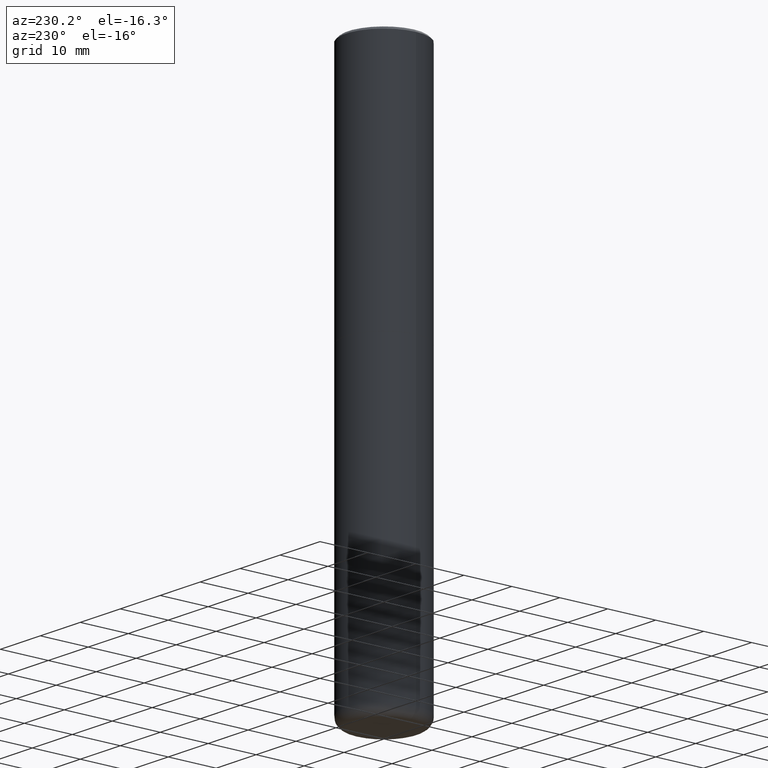
[diagram: clean part render]
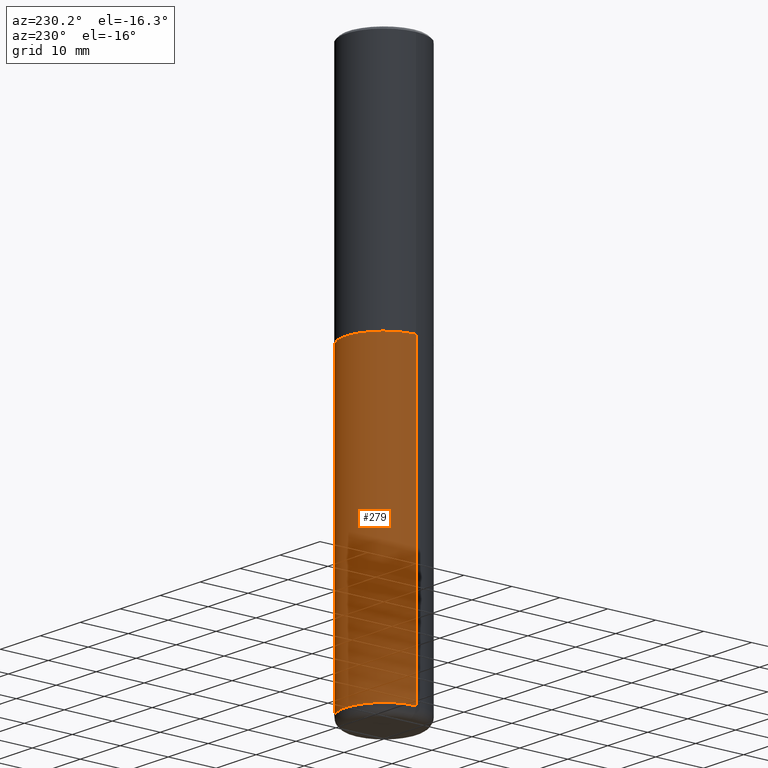
[diagram: same view with one face highlighted and labeled with its STEP entity id]
A machine part, auxiliary view. The second image highlights one B-rep face of the part: STEP entity #279.
In plain terms, the highlighted cylindrical surface (partial cylindrical patch) has radius 7.9997 mm, axis along (-0, 0, 1).
Its self-contained STEP definition (entity closure, byte-faithful):
#7 = CARTESIAN_POINT ( 'NONE',  ( -0.3149500000000000077, -9.034044008044774753E-15, -2.007899999999999796 ) ) ;
#11 = CARTESIAN_POINT ( 'NONE',  ( 4.910256815939135870E-29, -7.010545380263151710E-15, -2.007899999999999796 ) ) ;
#32 = ORIENTED_EDGE ( 'NONE', *, *, #400, .F. ) ;
#70 = ORIENTED_EDGE ( 'NONE', *, *, #302, .T. ) ;
#73 = VERTEX_POINT ( 'NONE', #7 ) ;
#85 = LINE ( 'NONE', #249, #242 ) ;
#98 = VERTEX_POINT ( 'NONE', #293 ) ;
#128 = DIRECTION ( 'NONE',  ( -2.445468806185136597E-29, 3.491481338843145583E-15, 1.000000000000000000 ) ) ;
#132 = VECTOR ( 'NONE', #297, 39.37007874015748143 ) ;
#138 = EDGE_CURVE ( 'NONE', #98, #73, #205, .T. ) ;
#154 = ORIENTED_EDGE ( 'NONE', *, *, #192, .F. ) ;
#156 = DIRECTION ( 'NONE',  ( 1.000000000000000000, -6.982962677686266711E-15, 4.876176775795936353E-29 ) ) ;
#172 = DIRECTION ( 'NONE',  ( -2.445468806185136597E-29, 3.491481338843145583E-15, 1.000000000000000000 ) ) ;
#181 = AXIS2_PLACEMENT_3D ( 'NONE', #309, #128, #156 ) ;
#182 = DIRECTION ( 'NONE',  ( -2.445468806185136877E-29, 3.491481338843145188E-15, 1.000000000000000000 ) ) ;
#184 = CARTESIAN_POINT ( 'NONE',  ( 0.3149500000000000077, -9.209829475600440793E-15, -2.007899999999999796 ) ) ;
#185 = VERTEX_POINT ( 'NONE', #327 ) ;
#189 = CARTESIAN_POINT ( 'NONE',  ( 1.087964617183705369E-28, -1.553325132837927055E-14, -4.448900000000000077 ) ) ;
#192 = EDGE_CURVE ( 'NONE', #414, #73, #248, .T. ) ;
#205 = LINE ( 'NONE', #299, #132 ) ;
#230 = ORIENTED_EDGE ( 'NONE', *, *, #138, .T. ) ;
#234 = CIRCLE ( 'NONE', #410, 0.3149500000000000077 ) ;
#242 = VECTOR ( 'NONE', #182, 39.37007874015748143 ) ;
#248 = CIRCLE ( 'NONE', #401, 0.3149500000000000077 ) ;
#249 = CARTESIAN_POINT ( 'NONE',  ( 0.3149500000000000077, -2.199284095337289871E-15, 1.535751875536930130E-29 ) ) ;
#275 = CYLINDRICAL_SURFACE ( 'NONE', #181, 0.3149500000000000077 ) ;
#279 = ADVANCED_FACE ( 'NONE', ( #282 ), #275, .T. ) ;
#282 = FACE_OUTER_BOUND ( 'NONE', #411, .T. ) ;
#293 = CARTESIAN_POINT ( 'NONE',  ( -0.3149499999999998967, -1.329539698210283615E-14, -4.448900000000000077 ) ) ;
#297 = DIRECTION ( 'NONE',  ( -2.445468806185136877E-29, 3.491481338843145188E-15, 1.000000000000000000 ) ) ;
#299 = CARTESIAN_POINT ( 'NONE',  ( -0.3149500000000000077, 2.237854346276435590E-15, -1.549218606675782676E-29 ) ) ;
#302 = EDGE_CURVE ( 'NONE', #185, #98, #234, .T. ) ;
#309 = CARTESIAN_POINT ( 'NONE',  ( 0.000000000000000000, 0.000000000000000000, 0.000000000000000000 ) ) ;
#327 = CARTESIAN_POINT ( 'NONE',  ( 0.3149499999999998967, -1.773253542371656200E-14, -4.448900000000000077 ) ) ;
#344 = DIRECTION ( 'NONE',  ( -2.445468806185136597E-29, 3.491481338843145583E-15, 1.000000000000000000 ) ) ;
#362 = DIRECTION ( 'NONE',  ( 1.000000000000000000, -6.982962677686263555E-15, 0.000000000000000000 ) ) ;
#400 = EDGE_CURVE ( 'NONE', #185, #414, #85, .T. ) ;
#401 = AXIS2_PLACEMENT_3D ( 'NONE', #11, #172, #362 ) ;
#409 = DIRECTION ( 'NONE',  ( 1.000000000000000000, -6.982962677686269866E-15, 0.000000000000000000 ) ) ;
#410 = AXIS2_PLACEMENT_3D ( 'NONE', #189, #344, #409 ) ;
#411 = EDGE_LOOP ( 'NONE', ( #70, #230, #154, #32 ) ) ;
#414 = VERTEX_POINT ( 'NONE', #184 ) ;